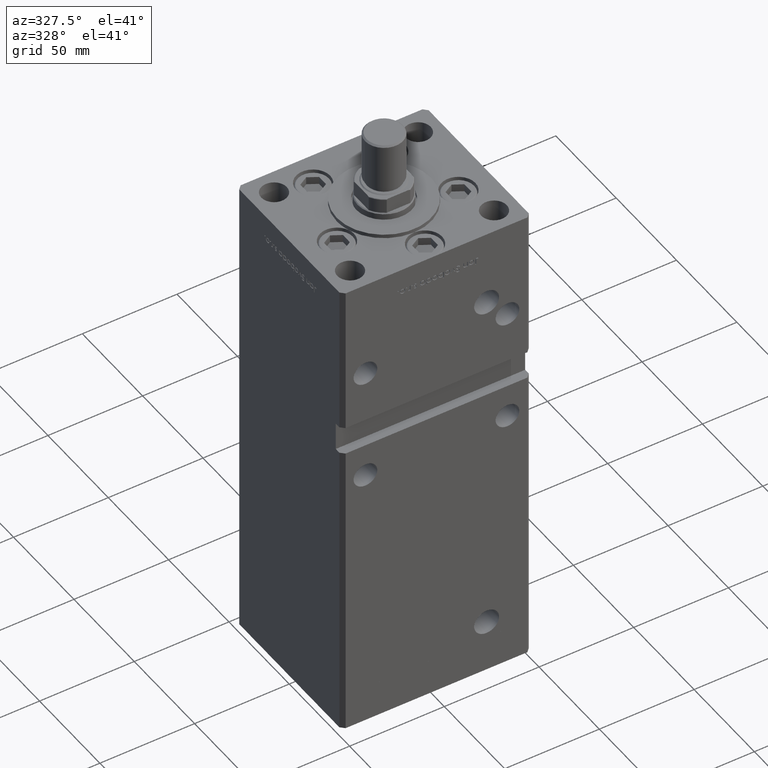
[diagram: clean part render]
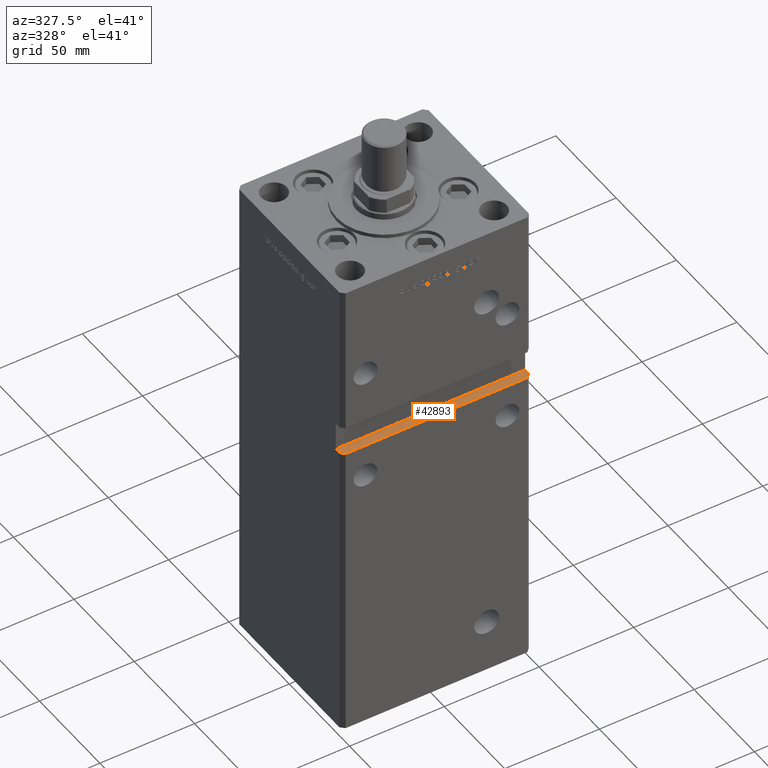
[diagram: same view with one face highlighted and labeled with its STEP entity id]
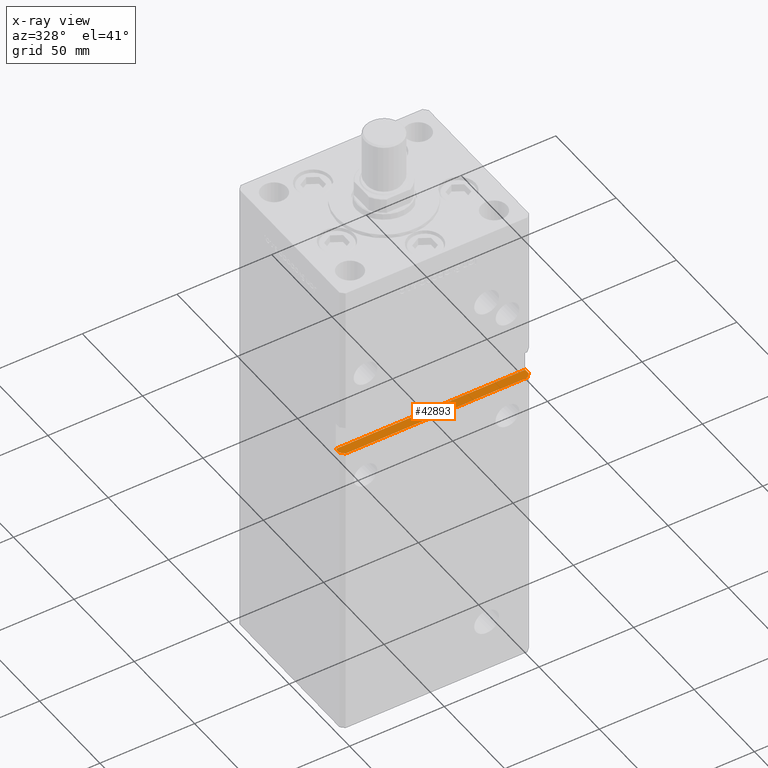
[diagram: x-ray of the same camera — body ghosted, the highlighted face saturated]
A machine part, auxiliary view. The second image highlights one B-rep face of the part: STEP entity #42893.
The next image is the same camera in x-ray: the body ghosted, the highlighted face saturated — about 0% of this face is hidden behind the body in this view.
In plain terms, the highlighted planar face has unit normal (0, 0, -1).
Its self-contained STEP definition (entity closure, byte-faithful):
#293 = CARTESIAN_POINT ( 'NONE',  ( 47.99999999999998579, -43.50000000000000000, 143.0000000000000284 ) ) ;
#807 = ORIENTED_EDGE ( 'NONE', *, *, #16860, .T. ) ;
#2098 = VERTEX_POINT ( 'NONE', #31412 ) ;
#3550 = FACE_OUTER_BOUND ( 'NONE', #17324, .T. ) ;
#3904 = LINE ( 'NONE', #20438, #21104 ) ;
#4174 = DIRECTION ( 'NONE',  ( 1.000000000000000000, 0.000000000000000000, 0.000000000000000000 ) ) ;
#7360 = ORIENTED_EDGE ( 'NONE', *, *, #27069, .F. ) ;
#8467 = CARTESIAN_POINT ( 'NONE',  ( 49.99999999999998579, -38.49999999999999289, 143.0000000000000284 ) ) ;
#10049 = VERTEX_POINT ( 'NONE', #12431 ) ;
#11170 = CARTESIAN_POINT ( 'NONE',  ( -49.99999999999998579, -38.50000000000000000, 143.0000000000000284 ) ) ;
#11487 = ORIENTED_EDGE ( 'NONE', *, *, #44735, .T. ) ;
#11966 = PLANE ( 'NONE',  #39167 ) ;
#12431 = CARTESIAN_POINT ( 'NONE',  ( -47.99999999999998579, -43.50000000000000000, 143.0000000000000284 ) ) ;
#13719 = LINE ( 'NONE', #30243, #23292 ) ;
#13772 = CARTESIAN_POINT ( 'NONE',  ( 49.99999999999998579, -41.49999999999999289, 143.0000000000000284 ) ) ;
#15615 = ORIENTED_EDGE ( 'NONE', *, *, #50318, .F. ) ;
#16184 = VERTEX_POINT ( 'NONE', #45779 ) ;
#16555 = CARTESIAN_POINT ( 'NONE',  ( -49.99999999999998579, -43.50000000000000000, 143.0000000000000284 ) ) ;
#16795 = EDGE_CURVE ( 'NONE', #10049, #38426, #46794, .T. ) ;
#16860 = EDGE_CURVE ( 'NONE', #2098, #16184, #31623, .T. ) ;
#17324 = EDGE_LOOP ( 'NONE', ( #51678, #11487, #53558, #15615, #807, #7360 ) ) ;
#18352 = CARTESIAN_POINT ( 'NONE',  ( -49.99999999999998579, -38.50000000000000000, 143.0000000000000284 ) ) ;
#18656 = LINE ( 'NONE', #13772, #33915 ) ;
#20087 = DIRECTION ( 'NONE',  ( 0.000000000000000000, 0.000000000000000000, -1.000000000000000000 ) ) ;
#20438 = CARTESIAN_POINT ( 'NONE',  ( -49.99999999999998579, -38.50000000000000000, 143.0000000000000284 ) ) ;
#21104 = VECTOR ( 'NONE', #4174, 1000.000000000000000 ) ;
#23292 = VECTOR ( 'NONE', #42167, 1000.000000000000114 ) ;
#26247 = CARTESIAN_POINT ( 'NONE',  ( 49.99999999999998579, -41.49999999999999289, 143.0000000000000284 ) ) ;
#26495 = DIRECTION ( 'NONE',  ( 0.7071067811865474617, 0.7071067811865474617, 0.000000000000000000 ) ) ;
#26599 = LINE ( 'NONE', #38796, #53033 ) ;
#27069 = EDGE_CURVE ( 'NONE', #10049, #16184, #13719, .T. ) ;
#28322 = VERTEX_POINT ( 'NONE', #26247 ) ;
#30243 = CARTESIAN_POINT ( 'NONE',  ( -49.99999999999998579, -41.49999999999999289, 143.0000000000000284 ) ) ;
#30540 = DIRECTION ( 'NONE',  ( -0.000000000000000000, -1.000000000000000000, -0.000000000000000000 ) ) ;
#31412 = CARTESIAN_POINT ( 'NONE',  ( -49.99999999999998579, -38.50000000000000000, 143.0000000000000284 ) ) ;
#31477 = DIRECTION ( 'NONE',  ( -0.000000000000000000, -1.000000000000000000, -0.000000000000000000 ) ) ;
#31623 = LINE ( 'NONE', #18352, #35195 ) ;
#32540 = DIRECTION ( 'NONE',  ( -1.000000000000000000, 0.000000000000000000, -0.000000000000000000 ) ) ;
#33915 = VECTOR ( 'NONE', #26495, 1000.000000000000114 ) ;
#34808 = VERTEX_POINT ( 'NONE', #8467 ) ;
#35195 = VECTOR ( 'NONE', #30540, 1000.000000000000000 ) ;
#38426 = VERTEX_POINT ( 'NONE', #293 ) ;
#38796 = CARTESIAN_POINT ( 'NONE',  ( 49.99999999999998579, -38.50000000000000000, 143.0000000000000284 ) ) ;
#39167 = AXIS2_PLACEMENT_3D ( 'NONE', #11170, #20087, #32540 ) ;
#41204 = DIRECTION ( 'NONE',  ( 1.000000000000000000, 0.000000000000000000, 0.000000000000000000 ) ) ;
#42021 = EDGE_CURVE ( 'NONE', #34808, #28322, #26599, .T. ) ;
#42167 = DIRECTION ( 'NONE',  ( -0.7071067811865474617, 0.7071067811865474617, 0.000000000000000000 ) ) ;
#42893 = ADVANCED_FACE ( 'NONE', ( #3550 ), #11966, .F. ) ;
#44735 = EDGE_CURVE ( 'NONE', #38426, #28322, #18656, .T. ) ;
#45779 = CARTESIAN_POINT ( 'NONE',  ( -49.99999999999998579, -41.49999999999999289, 143.0000000000000284 ) ) ;
#46794 = LINE ( 'NONE', #16555, #49913 ) ;
#49913 = VECTOR ( 'NONE', #41204, 1000.000000000000000 ) ;
#50318 = EDGE_CURVE ( 'NONE', #2098, #34808, #3904, .T. ) ;
#51678 = ORIENTED_EDGE ( 'NONE', *, *, #16795, .T. ) ;
#53033 = VECTOR ( 'NONE', #31477, 1000.000000000000000 ) ;
#53558 = ORIENTED_EDGE ( 'NONE', *, *, #42021, .F. ) ;